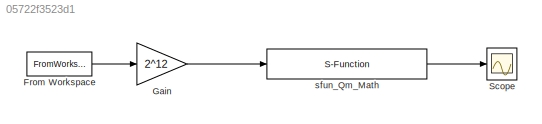
MODEL slx_05722f3523d1
KIND model
CONFIG InitFcn = stop_time = get_param(gcs, 'StopTime'); \nsimin.time = [0:str2num(stop_time)]'; \nsimin.signals.values = [0:length(simin.time) - 1]'; \nsimin.signals.demensions = [length(simin.time) 1]; 
BLOCK [FromWorkspace] From Workspace
  SampleTime = 0
  VariableName = simin
  ZeroCross = on
BLOCK [Gain] Gain
  Gain = 2^12
  OutDataTypeStr = uint32
  ParamDataTypeStr = Inherit: Inherit via internal rule
  SaturateOnIntegerOverflow = off
BLOCK [Scope] Scope
  DataFormat = StructureWithTime
  Floating = off
  NumInputPorts = 1
  Ports = [1]
  SampleTime = 0
  ShowLegends = off
BLOCK [S-Function] sfun_Qm_Math
  EnableBusSupport = off
  FunctionName = sfun_Qm_Math
  Ports = [1, 1]
LINE From Workspace:1 -> Gain:1
LINE Gain:1 -> sfun_Qm_Math:1
LINE sfun_Qm_Math:1 -> Scope:1
